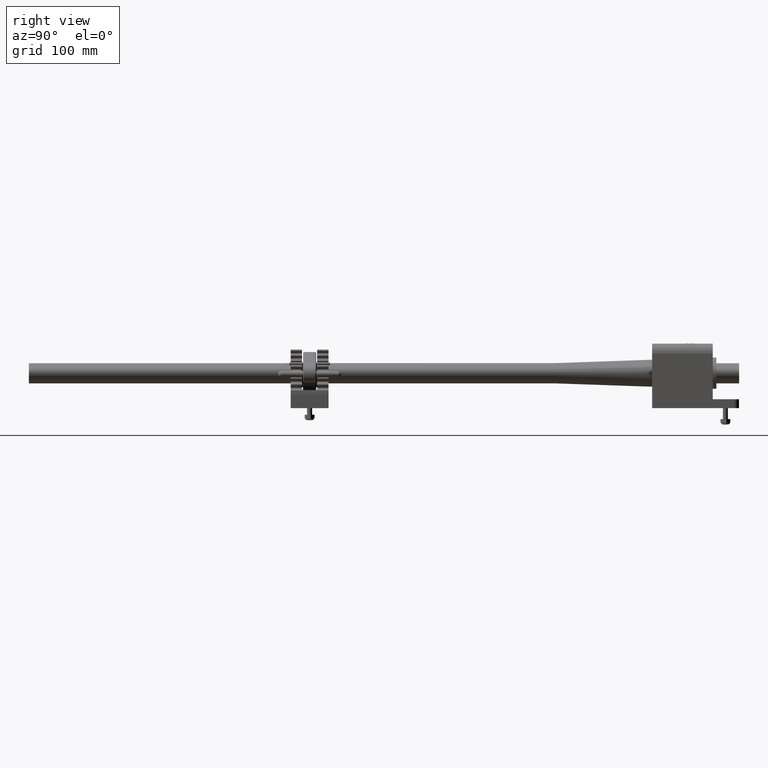
[diagram: clean part render]
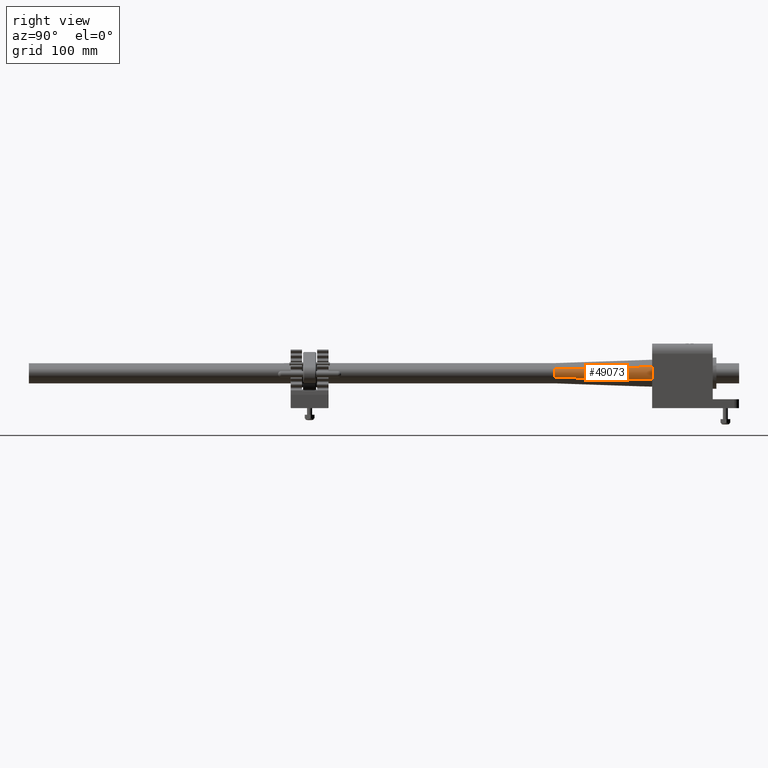
[diagram: same view with one face highlighted and labeled with its STEP entity id]
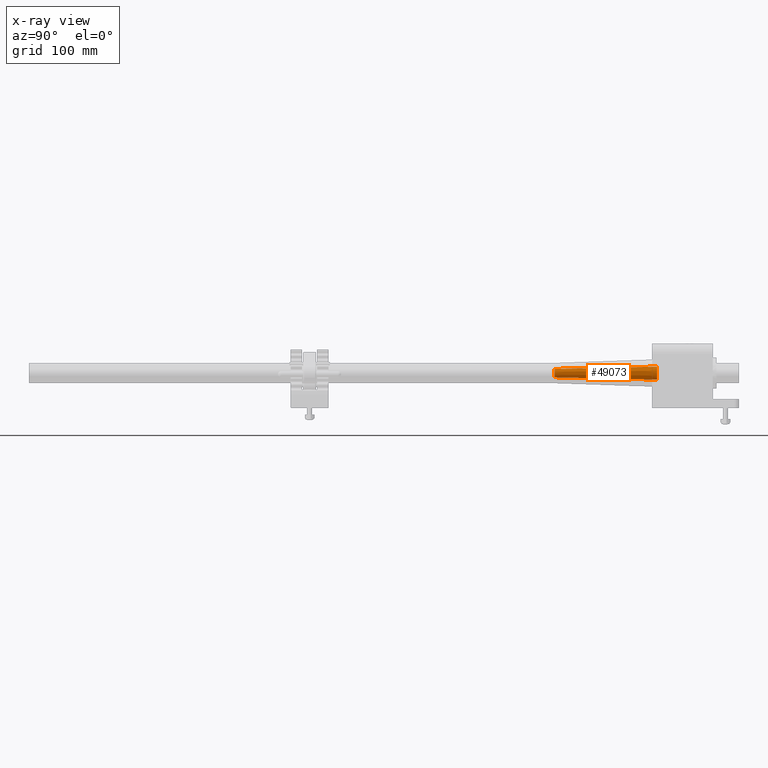
[diagram: x-ray of the same camera — body ghosted, the highlighted face saturated]
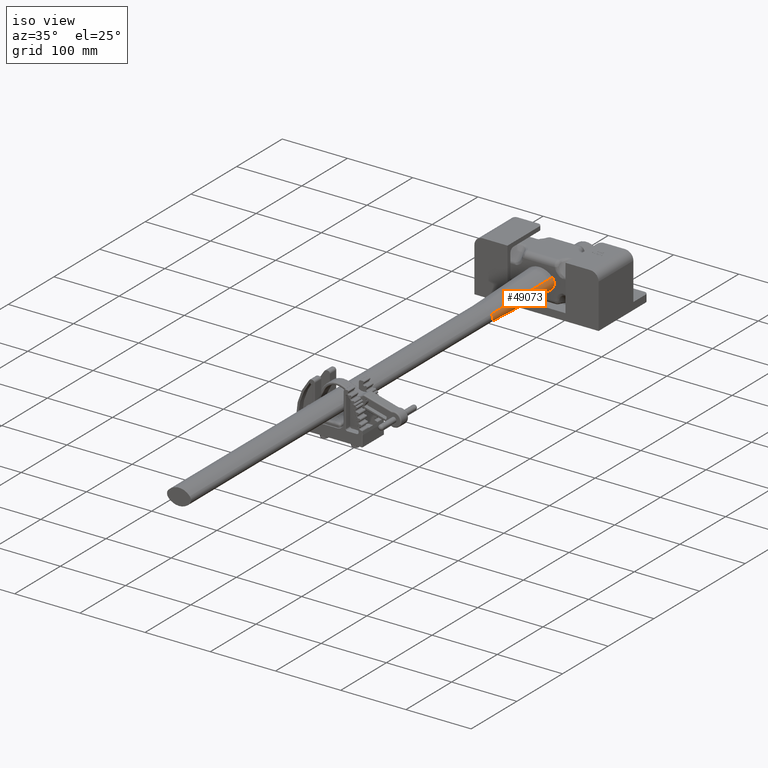
[diagram: same view with one face highlighted and labeled with its STEP entity id]
A machine part, right view. The second image highlights one B-rep face of the part: STEP entity #49073.
The next image is the same camera in x-ray: the body ghosted, the highlighted face saturated — about 0% of this face is hidden behind the body in this view.
A second angle (iso view) of the same face is appended — the face is thin or edge-on in the first view.
In plain terms, the highlighted conical surface has half-angle 2 deg.
Its self-contained STEP definition (entity closure, byte-faithful):
#1091 = VERTEX_POINT ( 'NONE', #5729 ) ;
#1171 = VERTEX_POINT ( 'NONE', #5696 ) ;
#1472 = VERTEX_POINT ( 'NONE', #39593 ) ;
#1504 = VERTEX_POINT ( 'NONE', #4915 ) ;
#4915 = CARTESIAN_POINT ( 'NONE',  ( 0.7813377612708749500, 31.06999999999999700, 0.3218947734727636800 ) ) ;
#5696 = CARTESIAN_POINT ( 'NONE',  ( 0.6479452054794521100, 26.00000000000000000, -0.2054794520547947300 ) ) ;
#5729 = CARTESIAN_POINT ( 'NONE',  ( 0.6479452054794521100, 26.00000000000000000, 0.2054794520547944500 ) ) ;
#7954 = ORIENTED_EDGE ( 'NONE', *, *, #35036, .F. ) ;
#7956 = ORIENTED_EDGE ( 'NONE', *, *, #35099, .T. ) ;
#7958 = ORIENTED_EDGE ( 'NONE', *, *, #35093, .T. ) ;
#7960 = ORIENTED_EDGE ( 'NONE', *, *, #35096, .F. ) ;
#8937 = CARTESIAN_POINT ( 'NONE',  ( 0.4124999999999999200, 31.06999999999999700, 0.0000000000000000000 ) ) ;
#8943 = DIRECTION ( 'NONE',  ( -0.0000000000000000000, 1.000000000000000000, 0.0000000000000000000 ) ) ;
#8944 = DIRECTION ( 'NONE',  ( 0.0000000000000000000, 0.0000000000000000000, 1.000000000000000000 ) ) ;
#9092 = CARTESIAN_POINT ( 'NONE',  ( 0.4124999999999999200, 26.00000000000000000, 0.0000000000000000000 ) ) ;
#9094 = DIRECTION ( 'NONE',  ( 0.0000000000000000000, 1.000000000000000000, -0.0000000000000000000 ) ) ;
#9095 = DIRECTION ( 'NONE',  ( 0.0000000000000000000, 0.0000000000000000000, -1.000000000000000000 ) ) ;
#9102 = CARTESIAN_POINT ( 'NONE',  ( 0.6479452054794522200, 26.00000000000000000, -0.2054794520547947300 ) ) ;
#9103 = DIRECTION ( 'NONE',  ( -0.02629414135119942700, -0.9993908270190957600, 0.02294761427013767100 ) ) ;
#9110 = CARTESIAN_POINT ( 'NONE',  ( 0.6479452054794521100, 26.00000000000000000, 0.2054794520547947300 ) ) ;
#9111 = DIRECTION ( 'NONE',  ( -0.02629414135119941000, -0.9993908270190957600, -0.02294761427013767800 ) ) ;
#12894 = AXIS2_PLACEMENT_3D ( 'NONE', #27486, #27485, #27481 ) ;
#19148 = CIRCLE ( 'NONE', #38838, 0.4895483013231616300 ) ;
#19210 = VECTOR ( 'NONE', #9103, 39.37007874015748900 ) ;
#19218 = VECTOR ( 'NONE', #9111, 39.37007874015748900 ) ;
#19220 = LINE ( 'NONE', #9102, #19210 ) ;
#19223 = LINE ( 'NONE', #9110, #19218 ) ;
#19224 = CIRCLE ( 'NONE', #38891, 0.3125000000000001700 ) ;
#27481 = DIRECTION ( 'NONE',  ( 0.0000000000000000000, 0.0000000000000000000, 1.000000000000000000 ) ) ;
#27485 = DIRECTION ( 'NONE',  ( 0.0000000000000000000, 1.000000000000000000, 0.0000000000000000000 ) ) ;
#27486 = CARTESIAN_POINT ( 'NONE',  ( 0.4124999999999999200, 26.00000000000000000, 0.0000000000000000000 ) ) ;
#35036 = EDGE_CURVE ( 'NONE', #1504, #1472, #19148, .T. ) ;
#35093 = EDGE_CURVE ( 'NONE', #1091, #1171, #19224, .T. ) ;
#35096 = EDGE_CURVE ( 'NONE', #1472, #1171, #19220, .T. ) ;
#35099 = EDGE_CURVE ( 'NONE', #1504, #1091, #19223, .T. ) ;
#38838 = AXIS2_PLACEMENT_3D ( 'NONE', #8937, #8943, #8944 ) ;
#38891 = AXIS2_PLACEMENT_3D ( 'NONE', #9092, #9094, #9095 ) ;
#39593 = CARTESIAN_POINT ( 'NONE',  ( 0.7813377612708751800, 31.06999999999999700, -0.3218947734727636800 ) ) ;
#41076 = FACE_OUTER_BOUND ( 'NONE', #49488, .T. ) ;
#41085 = CONICAL_SURFACE ( 'NONE', #12894, 0.3125000000000002800, 0.03490658503988666700 ) ;
#49073 = ADVANCED_FACE ( 'NONE', ( #41076 ), #41085, .T. ) ;
#49488 = EDGE_LOOP ( 'NONE', ( #7954, #7956, #7958, #7960 ) ) ;